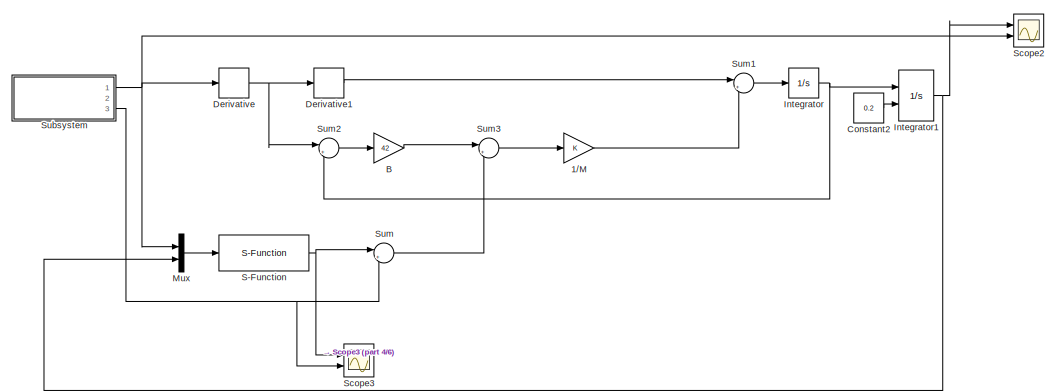
[diagram: root canvas - part 1/6, top right region]
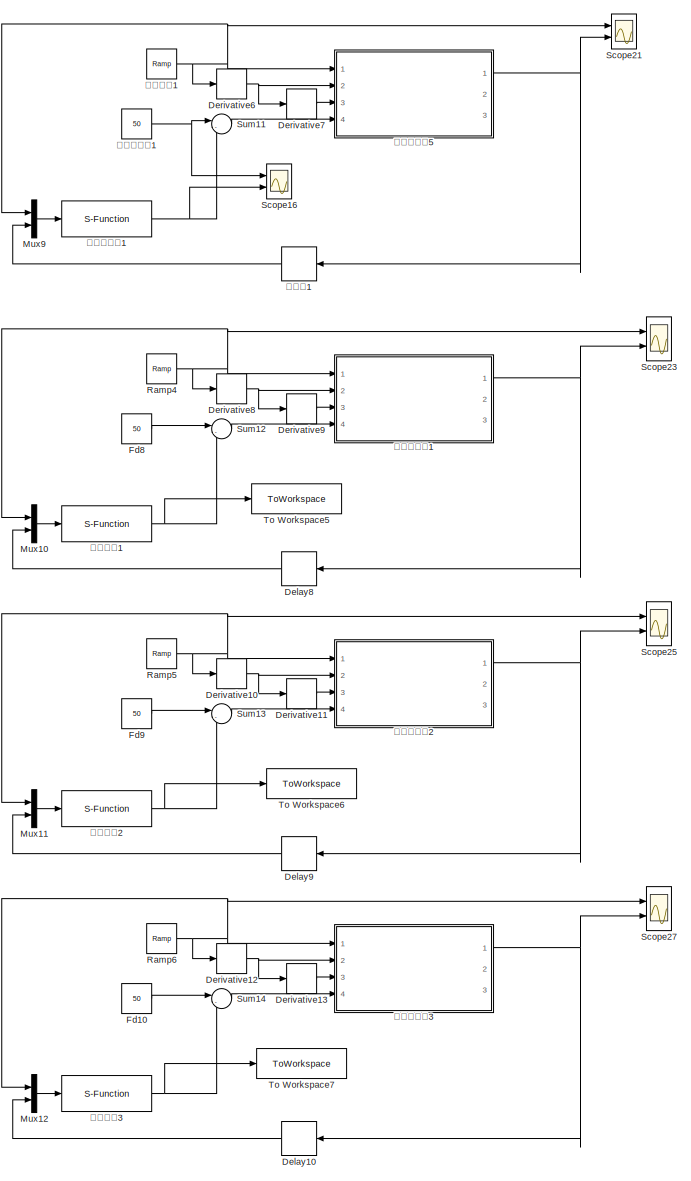
[diagram: root canvas - part 2/6, middle left region]
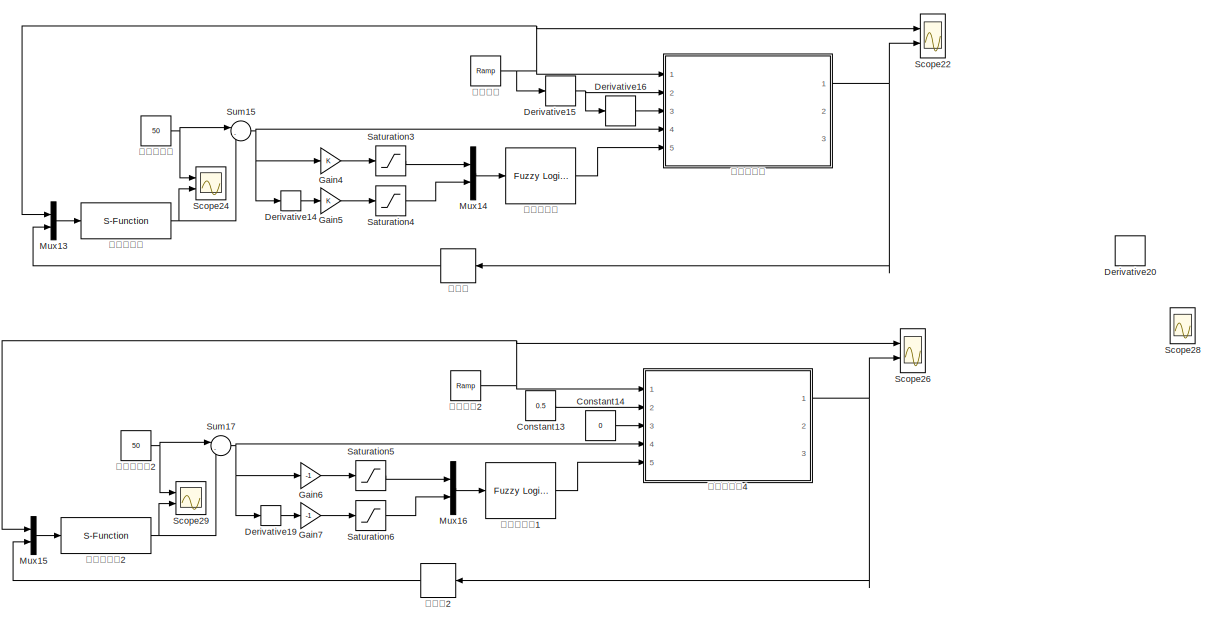
[diagram: root canvas - part 3/6, top center region]
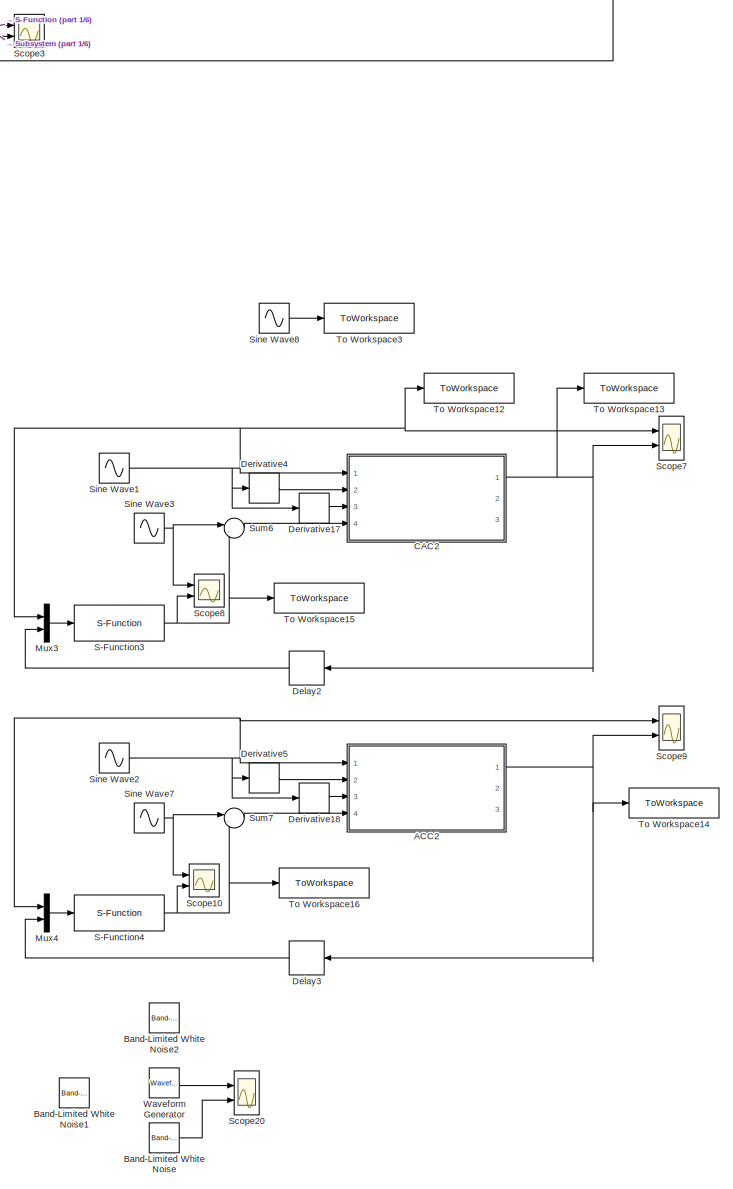
[diagram: root canvas - part 4/6, middle right region]
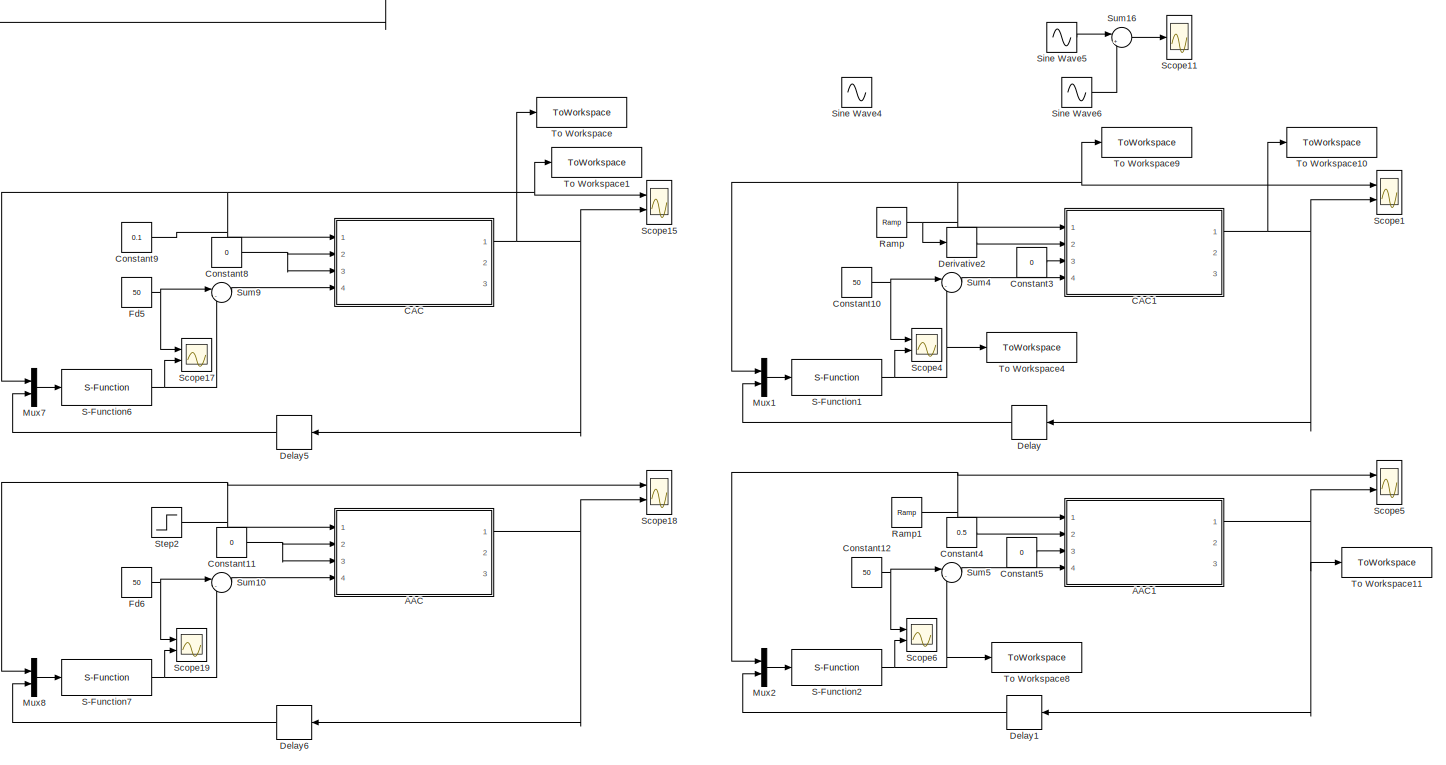
[diagram: root canvas - part 5/6, central region]
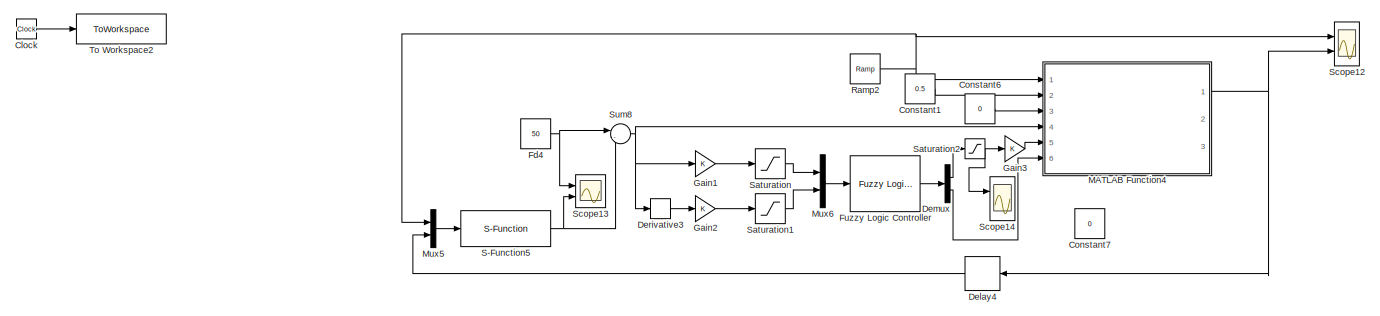
[diagram: root canvas - part 6/6, bottom center region]
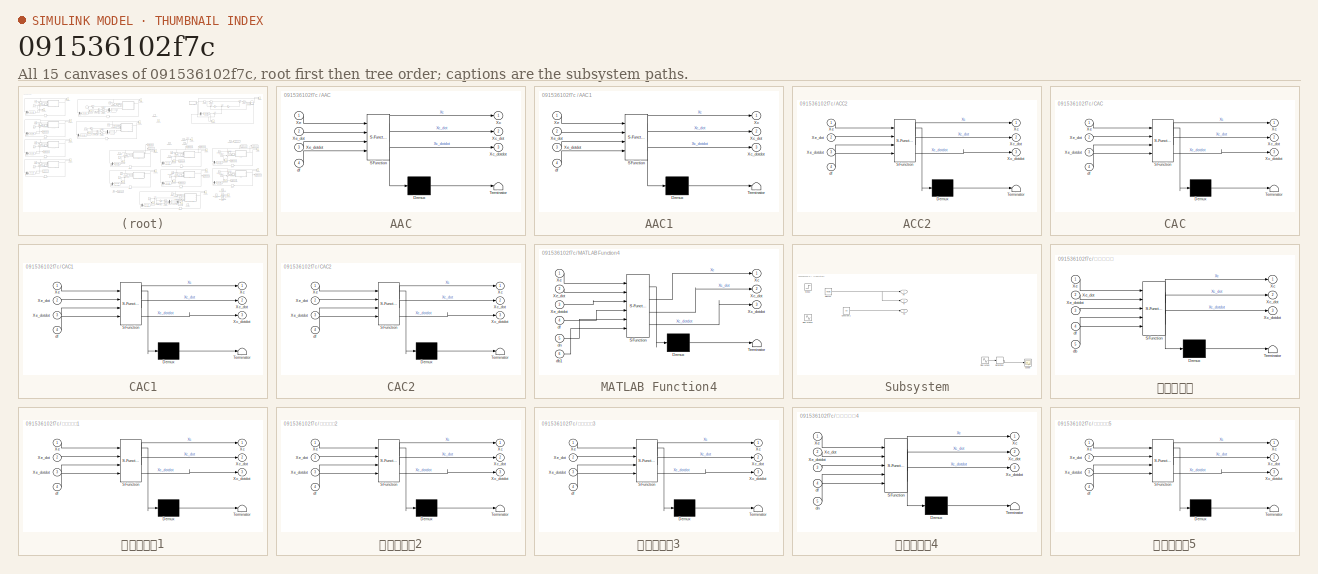
[diagram: thumbnail index - all 15 canvases of the model, root first then tree order]
MODEL slx_091536102f7c
KIND model
CONFIG AbsTol = auto
CONFIG EnableMultiTasking = off
CONFIG FixedStep = 0.00005
CONFIG MaxStep = auto
CONFIG MinStep = auto
CONFIG RelTol = 1e-3
CONFIG SampleTimeConstraint = Unconstrained
CONFIG Solver = FixedStepAuto
CONFIG SolverName = FixedStepAuto
CONFIG StartTime = 0.0
CONFIG StopTime = 2
BLOCK [Gain] 1//M
  Commented = on
BLOCK [SubSystem] AAC
  Commented = on
  ErrorFcn = Stateflow.Translate.translate
  PermitHierarchicalResolution = ExplicitOnly
  Ports = [4, 3]
  RequestExecContextInheritance = off
  SFBlockType = MATLAB Function
  TreatAsAtomicUnit = on
BLOCK [Demux] AAC/ Demux 
  Outputs = 1
  Ports = [1, 1]
BLOCK [S-Function] AAC/ SFunction 
  EnableBusSupport = on
  FunctionName = sf_sfun
  PortCounts = [4 4]
  Ports = [4, 4]
  SFcnIsStateOwnerBlock = off
  SFunctionDeploymentMode = off
  Tag = Stateflow S-Function 7
BLOCK [Terminator] AAC/ Terminator 
BLOCK [Outport] AAC/Xc
BLOCK [Outport] AAC/Xc_dot
  Port = 2
BLOCK [Outport] AAC/Xc_dotdot
  Port = 3
BLOCK [Inport] AAC/Xe
BLOCK [Inport] AAC/Xe_dot
  Port = 2
BLOCK [Inport] AAC/Xe_dotdot
  Port = 3
BLOCK [Inport] AAC/df
  Port = 4
BLOCK [SubSystem] AAC1
  Commented = on
  ErrorFcn = Stateflow.Translate.translate
  PermitHierarchicalResolution = ExplicitOnly
  Ports = [4, 3]
  RequestExecContextInheritance = off
  SFBlockType = MATLAB Function
  TreatAsAtomicUnit = on
BLOCK [Demux] AAC1/ Demux 
  Outputs = 1
  Ports = [1, 1]
BLOCK [S-Function] AAC1/ SFunction 
  EnableBusSupport = on
  FunctionName = sf_sfun
  PortCounts = [4 4]
  Ports = [4, 4]
  SFcnIsStateOwnerBlock = off
  SFunctionDeploymentMode = off
  Tag = Stateflow S-Function 1
BLOCK [Terminator] AAC1/ Terminator 
BLOCK [Outport] AAC1/Xc
BLOCK [Outport] AAC1/Xc_dot
  Port = 2
BLOCK [Outport] AAC1/Xc_dotdot
  Port = 3
BLOCK [Inport] AAC1/Xe
BLOCK [Inport] AAC1/Xe_dot
  Port = 2
BLOCK [Inport] AAC1/Xe_dotdot
  Port = 3
BLOCK [Inport] AAC1/df
  Port = 4
BLOCK [SubSystem] ACC2
  ErrorFcn = Stateflow.Translate.translate
  PermitHierarchicalResolution = ExplicitOnly
  Ports = [4, 3]
  RequestExecContextInheritance = off
  SFBlockType = MATLAB Function
  TreatAsAtomicUnit = on
BLOCK [Demux] ACC2/ Demux 
  Outputs = 1
  Ports = [1, 1]
BLOCK [S-Function] ACC2/ SFunction 
  EnableBusSupport = on
  FunctionName = sf_sfun
  PortCounts = [4 4]
  Ports = [4, 4]
  SFcnIsStateOwnerBlock = off
  SFunctionDeploymentMode = off
  Tag = Stateflow S-Function 4
BLOCK [Terminator] ACC2/ Terminator 
BLOCK [Outport] ACC2/Xc
BLOCK [Outport] ACC2/Xc_dot
  Port = 2
BLOCK [Outport] ACC2/Xc_dotdot
  Port = 3
BLOCK [Inport] ACC2/Xe
BLOCK [Inport] ACC2/Xe_dot
  Port = 2
BLOCK [Inport] ACC2/Xe_dotdot
  Port = 3
BLOCK [Inport] ACC2/df
  Port = 4
BLOCK [Gain] B
  Commented = on
  Gain = 42
BLOCK [Reference] Band-Limited White Noise  REF=simulink/Sources/Band-Limited
White Noise
  Ports = [0, 1]
  SourceBlock = simulink/Sources/Band-Limited\nWhite Noise
  SourceProductBaseCode = SL
  SourceType = Band-Limited White Noise.
BLOCK [Reference] Band-Limited White Noise1  REF=simulink/Sources/Band-Limited
White Noise
  NameLocation = top
  Ports = [0, 1]
  SourceBlock = simulink/Sources/Band-Limited\nWhite Noise
  SourceProductBaseCode = SL
  SourceType = Band-Limited White Noise.
BLOCK [Reference] Band-Limited White Noise2  REF=simulink/Sources/Band-Limited
White Noise
  Commented = on
  Ports = [0, 1]
  SourceBlock = simulink/Sources/Band-Limited\nWhite Noise
  SourceProductBaseCode = SL
  SourceType = Band-Limited White Noise.
BLOCK [SubSystem] CAC
  Commented = on
  ErrorFcn = Stateflow.Translate.translate
  PermitHierarchicalResolution = ExplicitOnly
  Ports = [4, 3]
  RequestExecContextInheritance = off
  SFBlockType = MATLAB Function
  TreatAsAtomicUnit = on
BLOCK [Demux] CAC/ Demux 
  Outputs = 1
  Ports = [1, 1]
BLOCK [S-Function] CAC/ SFunction 
  EnableBusSupport = on
  FunctionName = sf_sfun
  PortCounts = [4 4]
  Ports = [4, 4]
  SFcnIsStateOwnerBlock = off
  SFunctionDeploymentMode = off
  Tag = Stateflow S-Function 6
BLOCK [Terminator] CAC/ Terminator 
BLOCK [Outport] CAC/Xc
BLOCK [Outport] CAC/Xc_dot
  Port = 2
BLOCK [Outport] CAC/Xc_dotdot
  Port = 3
BLOCK [Inport] CAC/Xe
BLOCK [Inport] CAC/Xe_dot
  Port = 2
BLOCK [Inport] CAC/Xe_dotdot
  Port = 3
BLOCK [Inport] CAC/df
  Port = 4
BLOCK [SubSystem] CAC1
  Commented = on
  ErrorFcn = Stateflow.Translate.translate
  PermitHierarchicalResolution = ExplicitOnly
  Ports = [4, 3]
  RequestExecContextInheritance = off
  SFBlockType = MATLAB Function
  TreatAsAtomicUnit = on
BLOCK [Demux] CAC1/ Demux 
  Outputs = 1
  Ports = [1, 1]
BLOCK [S-Function] CAC1/ SFunction 
  EnableBusSupport = on
  FunctionName = sf_sfun
  PortCounts = [4 4]
  Ports = [4, 4]
  SFcnIsStateOwnerBlock = off
  SFunctionDeploymentMode = off
  Tag = Stateflow S-Function 2
BLOCK [Terminator] CAC1/ Terminator 
BLOCK [Outport] CAC1/Xc
BLOCK [Outport] CAC1/Xc_dot
  Port = 2
BLOCK [Outport] CAC1/Xc_dotdot
  Port = 3
BLOCK [Inport] CAC1/Xe
BLOCK [Inport] CAC1/Xe_dot
  Port = 2
BLOCK [Inport] CAC1/Xe_dotdot
  Port = 3
BLOCK [Inport] CAC1/df
  Port = 4
BLOCK [SubSystem] CAC2
  ErrorFcn = Stateflow.Translate.translate
  PermitHierarchicalResolution = ExplicitOnly
  Ports = [4, 3]
  RequestExecContextInheritance = off
  SFBlockType = MATLAB Function
  TreatAsAtomicUnit = on
BLOCK [Demux] CAC2/ Demux 
  Outputs = 1
  Ports = [1, 1]
BLOCK [S-Function] CAC2/ SFunction 
  EnableBusSupport = on
  FunctionName = sf_sfun
  PortCounts = [4 4]
  Ports = [4, 4]
  SFcnIsStateOwnerBlock = off
  SFunctionDeploymentMode = off
  Tag = Stateflow S-Function 3
BLOCK [Terminator] CAC2/ Terminator 
BLOCK [Outport] CAC2/Xc
BLOCK [Outport] CAC2/Xc_dot
  Port = 2
BLOCK [Outport] CAC2/Xc_dotdot
  Port = 3
BLOCK [Inport] CAC2/Xe
BLOCK [Inport] CAC2/Xe_dot
  Port = 2
BLOCK [Inport] CAC2/Xe_dotdot
  Port = 3
BLOCK [Inport] CAC2/df
  Port = 4
BLOCK [Clock] Clock
BLOCK [Constant] Constant1
  Commented = on
  Value = 0.5
BLOCK [Constant] Constant10
  Commented = on
  Value = 50
BLOCK [Constant] Constant11
  Commented = on
  Value = 0
BLOCK [Constant] Constant12
  Commented = on
  Value = 50
BLOCK [Constant] Constant13
  Commented = on
  Value = 0.5
BLOCK [Constant] Constant14
  Commented = on
  Value = 0
BLOCK [Constant] Constant2
  Commented = on
  Value = 0.2
BLOCK [Constant] Constant3
  Commented = on
  Value = 0
BLOCK [Constant] Constant4
  Commented = on
  Value = 0.5
BLOCK [Constant] Constant5
  Commented = on
  Value = 0
BLOCK [Constant] Constant6
  Commented = on
  Value = 0
BLOCK [Constant] Constant7
  Commented = on
  Value = 0
BLOCK [Constant] Constant8
  Commented = on
  Value = 0
BLOCK [Constant] Constant9
  Commented = on
  Value = 0.1
BLOCK [Delay] Delay
  Commented = on
  DelayLength = 1
  InitialCondition = -0.002
  InputPortMap = u0
  NameLocation = top
  Ports = [1, 1]
BLOCK [Delay] Delay1
  Commented = on
  DelayLength = 1
  InitialCondition = -0.002
  InputPortMap = u0
  NameLocation = top
  Ports = [1, 1]
BLOCK [Delay] Delay10
  Commented = on
  DelayLength = 1
  InitialCondition = -0.002
  InputPortMap = u0
  NameLocation = top
  Ports = [1, 1]
BLOCK [Delay] Delay2
  DelayLength = 1
  InitialCondition = 0.098
  InputPortMap = u0
  NameLocation = top
  Ports = [1, 1]
BLOCK [Delay] Delay3
  DelayLength = 1
  InitialCondition = 0.098
  InputPortMap = u0
  NameLocation = top
  Ports = [1, 1]
BLOCK [Delay] Delay4
  Commented = on
  DelayLength = 1
  InitialCondition = -0.002
  InputPortMap = u0
  NameLocation = top
  Ports = [1, 1]
BLOCK [Delay] Delay5
  Commented = on
  DelayLength = 1
  InitialCondition = 0.098
  InputPortMap = u0
  NameLocation = top
  Ports = [1, 1]
BLOCK [Delay] Delay6
  Commented = on
  DelayLength = 1
  InitialCondition = 0.098
  InputPortMap = u0
  NameLocation = top
  Ports = [1, 1]
BLOCK [Delay] Delay8
  Commented = on
  DelayLength = 1
  InitialCondition = -0.002
  InputPortMap = u0
  NameLocation = top
  Ports = [1, 1]
BLOCK [Delay] Delay9
  Commented = on
  DelayLength = 1
  InitialCondition = -0.002
  InputPortMap = u0
  NameLocation = top
  Ports = [1, 1]
BLOCK [Demux] Demux
  Commented = on
  Outputs = 2
  Ports = [1, 2]
BLOCK [Derivative] Derivative
  Commented = on
BLOCK [Derivative] Derivative1
  Commented = on
BLOCK [Derivative] Derivative10
  Commented = on
BLOCK [Derivative] Derivative11
  Commented = on
BLOCK [Derivative] Derivative12
  Commented = on
BLOCK [Derivative] Derivative13
  Commented = on
BLOCK [Derivative] Derivative14
  Commented = on
BLOCK [Derivative] Derivative15
  Commented = on
BLOCK [Derivative] Derivative16
  Commented = on
BLOCK [Derivative] Derivative17
BLOCK [Derivative] Derivative18
BLOCK [Derivative] Derivative19
  Commented = on
BLOCK [Derivative] Derivative2
  Commented = on
BLOCK [Derivative] Derivative20
BLOCK [Derivative] Derivative3
  Commented = on
BLOCK [Derivative] Derivative4
BLOCK [Derivative] Derivative5
BLOCK [Derivative] Derivative6
  Commented = on
BLOCK [Derivative] Derivative7
  Commented = on
BLOCK [Derivative] Derivative8
  Commented = on
BLOCK [Derivative] Derivative9
  Commented = on
BLOCK [Constant] Fd10
  Commented = on
  Value = 50
BLOCK [Constant] Fd4
  Commented = on
  Value = 50
BLOCK [Constant] Fd5
  Commented = on
  Value = 50
BLOCK [Constant] Fd6
  Commented = on
  Value = 50
BLOCK [Constant] Fd8
  Commented = on
  Value = 50
BLOCK [Constant] Fd9
  Commented = on
  Value = 50
BLOCK [Reference] Fuzzy Logic Controller  REF=fuzblock/Fuzzy Logic   (lib defined in mdl_858b3b3e7478)
Controller
  Commented = on
  Ports = [1, 1]
  SourceBlock = fuzblock/Fuzzy Logic \nController
  SourceProductBaseCode = FL
  SourceType = Fuzzy Inference System
BLOCK [Gain] Gain1
  Commented = on
BLOCK [Gain] Gain2
  Commented = on
BLOCK [Gain] Gain3
  Commented = on
BLOCK [Gain] Gain4
  Commented = on
BLOCK [Gain] Gain5
  Commented = on
BLOCK [Gain] Gain6
  Commented = on
  Gain = -1
BLOCK [Gain] Gain7
  Commented = on
  Gain = -1
BLOCK [Integrator] Integrator
  Commented = on
  Ports = [1, 1]
BLOCK [Integrator] Integrator1
  Commented = on
  InitialConditionSource = external
  Ports = [2, 1]
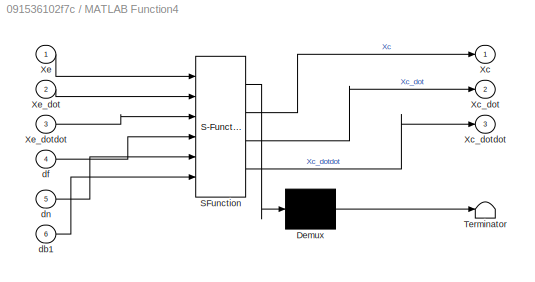
BLOCK [SubSystem] MATLAB Function4
  Commented = on
  ErrorFcn = Stateflow.Translate.translate
  PermitHierarchicalResolution = ExplicitOnly
  Ports = [6, 3]
  RequestExecContextInheritance = off
  SFBlockType = MATLAB Function
  TreatAsAtomicUnit = on
BLOCK [Demux] MATLAB Function4/ Demux 
  Outputs = 1
  Ports = [1, 1]
BLOCK [S-Function] MATLAB Function4/ SFunction 
  EnableBusSupport = on
  FunctionName = sf_sfun
  PortCounts = [6 4]
  Ports = [6, 4]
  SFcnIsStateOwnerBlock = off
  SFunctionDeploymentMode = off
  Tag = Stateflow S-Function 5
BLOCK [Terminator] MATLAB Function4/ Terminator 
BLOCK [Outport] MATLAB Function4/Xc
BLOCK [Outport] MATLAB Function4/Xc_dot
  Port = 2
BLOCK [Outport] MATLAB Function4/Xc_dotdot
  Port = 3
BLOCK [Inport] MATLAB Function4/Xe
BLOCK [Inport] MATLAB Function4/Xe_dot
  Port = 2
BLOCK [Inport] MATLAB Function4/Xe_dotdot
  Port = 3
BLOCK [Inport] MATLAB Function4/db1
  Port = 6
BLOCK [Inport] MATLAB Function4/df
  Port = 4
BLOCK [Inport] MATLAB Function4/dn
  Port = 5
BLOCK [Mux] Mux
  Commented = on
  DisplayOption = bar
  Inputs = 2
  Ports = [2, 1]
BLOCK [Mux] Mux1
  Commented = on
  DisplayOption = bar
  Inputs = 2
  Ports = [2, 1]
BLOCK [Mux] Mux10
  Commented = on
  DisplayOption = bar
  Inputs = 2
  Ports = [2, 1]
BLOCK [Mux] Mux11
  Commented = on
  DisplayOption = bar
  Inputs = 2
  Ports = [2, 1]
BLOCK [Mux] Mux12
  Commented = on
  DisplayOption = bar
  Inputs = 2
  Ports = [2, 1]
BLOCK [Mux] Mux13
  Commented = on
  DisplayOption = bar
  Inputs = 2
  Ports = [2, 1]
BLOCK [Mux] Mux14
  Commented = on
  DisplayOption = bar
  Inputs = 2
  Ports = [2, 1]
BLOCK [Mux] Mux15
  Commented = on
  DisplayOption = bar
  Inputs = 2
  Ports = [2, 1]
BLOCK [Mux] Mux16
  Commented = on
  DisplayOption = bar
  Inputs = 2
  Ports = [2, 1]
BLOCK [Mux] Mux2
  Commented = on
  DisplayOption = bar
  Inputs = 2
  Ports = [2, 1]
BLOCK [Mux] Mux3
  DisplayOption = bar
  Inputs = 2
  Ports = [2, 1]
BLOCK [Mux] Mux4
  DisplayOption = bar
  Inputs = 2
  Ports = [2, 1]
BLOCK [Mux] Mux5
  Commented = on
  DisplayOption = bar
  Inputs = 2
  Ports = [2, 1]
BLOCK [Mux] Mux6
  Commented = on
  DisplayOption = bar
  Inputs = 2
  Ports = [2, 1]
BLOCK [Mux] Mux7
  Commented = on
  DisplayOption = bar
  Inputs = 2
  Ports = [2, 1]
BLOCK [Mux] Mux8
  Commented = on
  DisplayOption = bar
  Inputs = 2
  Ports = [2, 1]
BLOCK [Mux] Mux9
  Commented = on
  DisplayOption = bar
  Inputs = 2
  Ports = [2, 1]
BLOCK [Reference] Ramp  REF=simulink/Sources/Ramp
  Commented = on
  Ports = [0, 1]
  SourceBlock = simulink/Sources/Ramp
  SourceProductBaseCode = SL
  SourceType = Ramp
BLOCK [Reference] Ramp1  REF=simulink/Sources/Ramp
  Commented = on
  Ports = [0, 1]
  SourceBlock = simulink/Sources/Ramp
  SourceProductBaseCode = SL
  SourceType = Ramp
BLOCK [Reference] Ramp2  REF=simulink/Sources/Ramp
  Commented = on
  Ports = [0, 1]
  SourceBlock = simulink/Sources/Ramp
  SourceProductBaseCode = SL
  SourceType = Ramp
BLOCK [Reference] Ramp4  REF=simulink/Sources/Ramp
  Commented = on
  Ports = [0, 1]
  SourceBlock = simulink/Sources/Ramp
  SourceProductBaseCode = SL
  SourceType = Ramp
BLOCK [Reference] Ramp5  REF=simulink/Sources/Ramp
  Commented = on
  Ports = [0, 1]
  SourceBlock = simulink/Sources/Ramp
  SourceProductBaseCode = SL
  SourceType = Ramp
BLOCK [Reference] Ramp6  REF=simulink/Sources/Ramp
  Commented = on
  Ports = [0, 1]
  SourceBlock = simulink/Sources/Ramp
  SourceProductBaseCode = SL
  SourceType = Ramp
BLOCK [S-Function] S-Function
  Commented = on
  EnableBusSupport = off
  FunctionName = contact_force
  Ports = [1, 1]
  SFcnIsStateOwnerBlock = off
  SFunctionDeploymentMode = off
BLOCK [S-Function] S-Function1
  Commented = on
  EnableBusSupport = off
  FunctionName = contact_force
  Ports = [1, 1]
  SFcnIsStateOwnerBlock = off
  SFunctionDeploymentMode = off
BLOCK [S-Function] S-Function2
  Commented = on
  EnableBusSupport = off
  FunctionName = contact_force
  Ports = [1, 1]
  SFcnIsStateOwnerBlock = off
  SFunctionDeploymentMode = off
BLOCK [S-Function] S-Function3
  EnableBusSupport = off
  FunctionName = contact_force
  Ports = [1, 1]
  SFcnIsStateOwnerBlock = off
  SFunctionDeploymentMode = off
BLOCK [S-Function] S-Function4
  EnableBusSupport = off
  FunctionName = contact_force
  Ports = [1, 1]
  SFcnIsStateOwnerBlock = off
  SFunctionDeploymentMode = off
BLOCK [S-Function] S-Function5
  Commented = on
  EnableBusSupport = off
  FunctionName = contact_force
  Ports = [1, 1]
  SFcnIsStateOwnerBlock = off
  SFunctionDeploymentMode = off
BLOCK [S-Function] S-Function6
  Commented = on
  EnableBusSupport = off
  FunctionName = contact_force
  Ports = [1, 1]
  SFcnIsStateOwnerBlock = off
  SFunctionDeploymentMode = off
BLOCK [S-Function] S-Function7
  Commented = on
  EnableBusSupport = off
  FunctionName = contact_force
  Ports = [1, 1]
  SFcnIsStateOwnerBlock = off
  SFunctionDeploymentMode = off
BLOCK [Saturate] Saturation
  Commented = on
  LowerLimit = -8
  UpperLimit = 8
BLOCK [Saturate] Saturation1
  Commented = on
  LowerLimit = -8
  UpperLimit = 8
BLOCK [Saturate] Saturation2
  Commented = on
  LowerLimit = -10000
  UpperLimit = 10000
BLOCK [Saturate] Saturation3
  Commented = on
  LowerLimit = -8
  UpperLimit = 8
BLOCK [Saturate] Saturation4
  Commented = on
  LowerLimit = -8
  UpperLimit = 8
BLOCK [Saturate] Saturation5
  Commented = on
  LowerLimit = -6
  UpperLimit = 6
BLOCK [Saturate] Saturation6
  Commented = on
  LowerLimit = -6
  UpperLimit = 6
BLOCK [Scope] Scope1
  Commented = on
  Floating = off
  NumInputPorts = 2
  Ports = [2]
  ScopeSpecificationString = Simulink.scopes.TimeScopeBlockCfg('CurrentConfiguration', extmgr.ConfigurationSet(extmgr.Configuration('Core','General UI',true),extmgr.Configuration('Core','Source UI',true),extmgr.Configuration('Sources','WiredSimulink',true,'DataLoggingVariableName','ScopeData1'),extmgr.Configuration('Visuals','Time Domain',true,'SerializedDisplays',{struct('MinYLimReal','-0.03421','MaxYLimReal','0.28719','YLab...<+1405ch>
BLOCK [Scope] Scope10
  Floating = off
  NumInputPorts = 2
  Ports = [2]
  ScopeSpecificationString = Simulink.scopes.TimeScopeBlockCfg('CurrentConfiguration', extmgr.ConfigurationSet(extmgr.Configuration('Core','General UI',true),extmgr.Configuration('Core','Source UI',true),extmgr.Configuration('Sources','WiredSimulink',true,'DataLoggingVariableName','ScopeData1'),extmgr.Configuration('Visuals','Time Domain',true,'SerializedDisplays',{struct('MinYLimReal','-14.36772','MaxYLimReal','18.56492','YL...<+1493ch>
BLOCK [Scope] Scope11
  Floating = off
  NumInputPorts = 1
  Ports = [1]
  ScopeSpecificationString = Simulink.scopes.TimeScopeBlockCfg('CurrentConfiguration', extmgr.ConfigurationSet(extmgr.Configuration('Core','General UI',true),extmgr.Configuration('Core','Source UI',true),extmgr.Configuration('Sources','WiredSimulink',true,'DataLoggingVariableName','ScopeData2'),extmgr.Configuration('Visuals','Time Domain',true,'SerializedDisplays',{struct('MinYLimReal','-0.0977','MaxYLimReal','0.09745','YLabe...<+1418ch>
BLOCK [Scope] Scope12
  Commented = on
  Floating = off
  NumInputPorts = 2
  Ports = [2]
  ScopeSpecificationString = Simulink.scopes.TimeScopeBlockCfg('CurrentConfiguration', extmgr.ConfigurationSet(extmgr.Configuration('Core','General UI',true),extmgr.Configuration('Core','Source UI',true),extmgr.Configuration('Sources','WiredSimulink',true,'DataLoggingVariableName','ScopeData1'),extmgr.Configuration('Visuals','Time Domain',true,'SerializedDisplays',{struct('MinYLimReal','-0.70776','MaxYLimReal','5.63364','YLab...<+1438ch>
BLOCK [Scope] Scope13
  Commented = on
  Floating = off
  NumInputPorts = 2
  Ports = [2]
  ScopeSpecificationString = Simulink.scopes.TimeScopeBlockCfg('CurrentConfiguration', extmgr.ConfigurationSet(extmgr.Configuration('Core','General UI',true),extmgr.Configuration('Core','Source UI',true),extmgr.Configuration('Sources','WiredSimulink',true,'DataLoggingVariableName','ScopeData2'),extmgr.Configuration('Visuals','Time Domain',true,'SerializedDisplays',{struct('MinYLimReal','49.77845','MaxYLimReal','50.19047','YLa...<+1459ch>
BLOCK [Scope] Scope14
  Commented = on
  Floating = off
  NumInputPorts = 2
  Ports = [2]
  ScopeSpecificationString = Simulink.scopes.TimeScopeBlockCfg('CurrentConfiguration', extmgr.ConfigurationSet(extmgr.Configuration('Core','General UI',true),extmgr.Configuration('Core','Source UI',true),extmgr.Configuration('Sources','WiredSimulink',true,'DataLoggingVariableName','ScopeData3'),extmgr.Configuration('Visuals','Time Domain',true,'SerializedDisplays',{struct('MinYLimReal','0.45359','MaxYLimReal','1.27458','YLabe...<+1502ch>
BLOCK [Scope] Scope15
  Commented = on
  Floating = off
  NumInputPorts = 2
  Ports = [2]
  ScopeSpecificationString = Simulink.scopes.TimeScopeBlockCfg('CurrentConfiguration', extmgr.ConfigurationSet(extmgr.Configuration('Core','General UI',true),extmgr.Configuration('Core','Source UI',true),extmgr.Configuration('Sources','WiredSimulink',true,'DataLoggingVariableName','ScopeData1'),extmgr.Configuration('Visuals','Time Domain',true,'SerializedDisplays',{struct('MinYLimReal','0.08836','MaxYLimReal','0.10129','YLabe...<+1407ch>
BLOCK [Scope] Scope16
  Commented = on
  Floating = off
  NumInputPorts = 2
  Ports = [2]
  ScopeSpecificationString = Simulink.scopes.TimeScopeBlockCfg('CurrentConfiguration', extmgr.ConfigurationSet(extmgr.Configuration('Core','General UI',true),extmgr.Configuration('Core','Source UI',true),extmgr.Configuration('Sources','WiredSimulink',true,'DataLoggingVariableName','ScopeData5'),extmgr.Configuration('Visuals','Time Domain',true,'SerializedDisplays',{struct('MinYLimReal','3.48992','MaxYLimReal','68.59073','YLab...<+1435ch>
BLOCK [Scope] Scope17
  Commented = on
  Floating = off
  NumInputPorts = 2
  Ports = [2]
  ScopeSpecificationString = Simulink.scopes.TimeScopeBlockCfg('CurrentConfiguration', extmgr.ConfigurationSet(extmgr.Configuration('Core','General UI',true),extmgr.Configuration('Core','Source UI',true),extmgr.Configuration('Sources','WiredSimulink',true,'DataLoggingVariableName','ScopeData3'),extmgr.Configuration('Visuals','Time Domain',true,'SerializedDisplays',{struct('MinYLimReal','4.78222','MaxYLimReal','56.95998','YLab...<+1456ch>
BLOCK [Scope] Scope18
  Commented = on
  Floating = off
  NumInputPorts = 2
  Ports = [2]
  ScopeSpecificationString = Simulink.scopes.TimeScopeBlockCfg('CurrentConfiguration', extmgr.ConfigurationSet(extmgr.Configuration('Core','General UI',true),extmgr.Configuration('Core','Source UI',true),extmgr.Configuration('Sources','WiredSimulink',true,'DataLoggingVariableName','ScopeData4'),extmgr.Configuration('Visuals','Time Domain',true,'SerializedDisplays',{struct('MinYLimReal','0.08543','MaxYLimReal','0.10162','YLabe...<+1437ch>
BLOCK [Scope] Scope19
  Commented = on
  Floating = off
  NumInputPorts = 2
  Ports = [2]
  ScopeSpecificationString = Simulink.scopes.TimeScopeBlockCfg('CurrentConfiguration', extmgr.ConfigurationSet(extmgr.Configuration('Core','General UI',true),extmgr.Configuration('Core','Source UI',true),extmgr.Configuration('Sources','WiredSimulink',true,'DataLoggingVariableName','ScopeData5'),extmgr.Configuration('Visuals','Time Domain',true,'SerializedDisplays',{struct('MinYLimReal','1.08489','MaxYLimReal','65.23596','YLab...<+1453ch>
BLOCK [Scope] Scope2
  Commented = on
  Floating = off
  NumInputPorts = 2
  Ports = [2]
  ScopeSpecificationString = Simulink.scopes.TimeScopeBlockCfg('CurrentConfiguration', extmgr.ConfigurationSet(extmgr.Configuration('Core','General UI',true),extmgr.Configuration('Core','Source UI',true),extmgr.Configuration('Sources','WiredSimulink',true),extmgr.Configuration('Visuals','Time Domain',true,'SerializedDisplays',{struct('MinYLimReal','-0.73903','MaxYLimReal','5.63211','YLabelReal','','MinYLimMag','0.00000','MaxY...<+1397ch>
BLOCK [Scope] Scope20
  Floating = off
  NumInputPorts = 2
  Ports = [2]
  ScopeSpecificationString = Simulink.scopes.TimeScopeBlockCfg('CurrentConfiguration', extmgr.ConfigurationSet(extmgr.Configuration('Core','General UI',true),extmgr.Configuration('Core','Source UI',true),extmgr.Configuration('Sources','WiredSimulink',true,'DataLoggingVariableName','ScopeData1'),extmgr.Configuration('Visuals','Time Domain',true,'SerializedDisplays',{struct('MinYLimReal','-0.57066','MaxYLimReal','0.59378','YLab...<+1461ch>
BLOCK [Scope] Scope21
  Commented = on
  Floating = off
  NumInputPorts = 2
  Ports = [2]
  ScopeSpecificationString = Simulink.scopes.TimeScopeBlockCfg('CurrentConfiguration', extmgr.ConfigurationSet(extmgr.Configuration('Core','General UI',true),extmgr.Configuration('Core','Source UI',true),extmgr.Configuration('Sources','WiredSimulink',true,'DataLoggingVariableName','ScopeData1'),extmgr.Configuration('Visuals','Time Domain',true,'SerializedDisplays',{struct('MinYLimReal','-0.04164','MaxYLimReal','0.35454','YLab...<+1403ch>
BLOCK [Scope] Scope22
  Commented = on
  Floating = off
  NumInputPorts = 2
  Ports = [2]
  ScopeSpecificationString = Simulink.scopes.TimeScopeBlockCfg('CurrentConfiguration', extmgr.ConfigurationSet(extmgr.Configuration('Core','General UI',true),extmgr.Configuration('Core','Source UI',true),extmgr.Configuration('Sources','WiredSimulink',true,'DataLoggingVariableName','ScopeData1'),extmgr.Configuration('Visuals','Time Domain',true,'SerializedDisplays',{struct('MinYLimReal','0.13781','MaxYLimReal','0.3957','YLabel...<+1431ch>
BLOCK [Scope] Scope23
  Commented = on
  Floating = off
  NumInputPorts = 2
  Ports = [2]
  ScopeSpecificationString = Simulink.scopes.TimeScopeBlockCfg('CurrentConfiguration', extmgr.ConfigurationSet(extmgr.Configuration('Core','General UI',true),extmgr.Configuration('Core','Source UI',true),extmgr.Configuration('Sources','WiredSimulink',true,'DataLoggingVariableName','ScopeData3'),extmgr.Configuration('Visuals','Time Domain',true,'SerializedDisplays',{struct('MinYLimReal','-0.06468','MaxYLimReal','0.56185','YLab...<+1407ch>
BLOCK [Scope] Scope24
  Commented = on
  Floating = off
  NumInputPorts = 2
  Ports = [2]
  ScopeSpecificationString = Simulink.scopes.TimeScopeBlockCfg('CurrentConfiguration', extmgr.ConfigurationSet(extmgr.Configuration('Core','General UI',true),extmgr.Configuration('Core','Source UI',true),extmgr.Configuration('Sources','WiredSimulink',true,'DataLoggingVariableName','ScopeData2'),extmgr.Configuration('Visuals','Time Domain',true,'SerializedDisplays',{struct('MinYLimReal','-27.85987','MaxYLimReal','127.51475','Y...<+1446ch>
BLOCK [Scope] Scope25
  Commented = on
  Floating = off
  NumInputPorts = 2
  Ports = [2]
  ScopeSpecificationString = Simulink.scopes.TimeScopeBlockCfg('CurrentConfiguration', extmgr.ConfigurationSet(extmgr.Configuration('Core','General UI',true),extmgr.Configuration('Core','Source UI',true),extmgr.Configuration('Sources','WiredSimulink',true,'DataLoggingVariableName','ScopeData5'),extmgr.Configuration('Visuals','Time Domain',true,'SerializedDisplays',{struct('MinYLimReal','-0.06468','MaxYLimReal','0.56185','YLab...<+1407ch>
BLOCK [Scope] Scope26
  Commented = on
  Floating = off
  NumInputPorts = 2
  Ports = [2]
  ScopeSpecificationString = Simulink.scopes.TimeScopeBlockCfg('CurrentConfiguration', extmgr.ConfigurationSet(extmgr.Configuration('Core','General UI',true),extmgr.Configuration('Core','Source UI',true),extmgr.Configuration('Sources','WiredSimulink',true,'DataLoggingVariableName','ScopeData1'),extmgr.Configuration('Visuals','Time Domain',true,'SerializedDisplays',{struct('MinYLimReal','-1135374855807.70898','MaxYLimReal','12...<+1519ch>
BLOCK [Scope] Scope27
  Commented = on
  Floating = off
  NumInputPorts = 2
  Ports = [2]
  ScopeSpecificationString = Simulink.scopes.TimeScopeBlockCfg('CurrentConfiguration', extmgr.ConfigurationSet(extmgr.Configuration('Core','General UI',true),extmgr.Configuration('Core','Source UI',true),extmgr.Configuration('Sources','WiredSimulink',true,'DataLoggingVariableName','ScopeData7'),extmgr.Configuration('Visuals','Time Domain',true,'SerializedDisplays',{struct('MinYLimReal','-0.06468','MaxYLimReal','0.56185','YLab...<+1407ch>
BLOCK [Scope] Scope28
  Commented = on
  Floating = off
  NumInputPorts = 1
  Ports = [1]
  ScopeSpecificationString = Simulink.scopes.TimeScopeBlockCfg('CurrentConfiguration', extmgr.ConfigurationSet(extmgr.Configuration('Core','General UI',true),extmgr.Configuration('Core','Source UI',true),extmgr.Configuration('Sources','WiredSimulink',true,'DataLoggingVariableName','ScopeData1'),extmgr.Configuration('Visuals','Time Domain',true,'SerializedDisplays',{struct('MinYLimReal','-8.90147','MaxYLimReal','74.86293','YLa...<+1438ch>
BLOCK [Scope] Scope29
  Commented = on
  Floating = off
  NumInputPorts = 2
  Ports = [2]
  ScopeSpecificationString = Simulink.scopes.TimeScopeBlockCfg('CurrentConfiguration', extmgr.ConfigurationSet(extmgr.Configuration('Core','General UI',true),extmgr.Configuration('Core','Source UI',true),extmgr.Configuration('Sources','WiredSimulink',true,'DataLoggingVariableName','ScopeData2'),extmgr.Configuration('Visuals','Time Domain',true,'SerializedDisplays',{struct('MinYLimReal','2.59713','MaxYLimReal','57.67458','YLab...<+1451ch>
BLOCK [Scope] Scope3
  Commented = on
  Floating = off
  NumInputPorts = 2
  Ports = [2]
  ScopeSpecificationString = Simulink.scopes.TimeScopeBlockCfg('CurrentConfiguration', extmgr.ConfigurationSet(extmgr.Configuration('Core','General UI',true),extmgr.Configuration('Core','Source UI',true),extmgr.Configuration('Sources','WiredSimulink',true,'DataLoggingVariableName','ScopeData2'),extmgr.Configuration('Visuals','Time Domain',true,'SerializedDisplays',{struct('MinYLimReal','47.18889','MaxYLimReal','52.46789','YLa...<+1439ch>
BLOCK [Scope] Scope4
  Commented = on
  Floating = off
  NumInputPorts = 2
  Ports = [2]
  ScopeSpecificationString = Simulink.scopes.TimeScopeBlockCfg('CurrentConfiguration', extmgr.ConfigurationSet(extmgr.Configuration('Core','General UI',true),extmgr.Configuration('Core','Source UI',true),extmgr.Configuration('Sources','WiredSimulink',true,'DataLoggingVariableName','ScopeData4'),extmgr.Configuration('Visuals','Time Domain',true,'SerializedDisplays',{struct('MinYLimReal','1.74371','MaxYLimReal','34.24326','YLab...<+1514ch>
BLOCK [Scope] Scope5
  Commented = on
  Floating = off
  NumInputPorts = 2
  Ports = [2]
  ScopeSpecificationString = Simulink.scopes.TimeScopeBlockCfg('CurrentConfiguration', extmgr.ConfigurationSet(extmgr.Configuration('Core','General UI',true),extmgr.Configuration('Core','Source UI',true),extmgr.Configuration('Sources','WiredSimulink',true,'DataLoggingVariableName','ScopeData1'),extmgr.Configuration('Visuals','Time Domain',true,'SerializedDisplays',{struct('MinYLimReal','-0.70776','MaxYLimReal','5.63364','YLab...<+1427ch>
BLOCK [Scope] Scope6
  Commented = on
  Floating = off
  NumInputPorts = 2
  Ports = [2]
  ScopeSpecificationString = Simulink.scopes.TimeScopeBlockCfg('CurrentConfiguration', extmgr.ConfigurationSet(extmgr.Configuration('Core','General UI',true),extmgr.Configuration('Core','Source UI',true),extmgr.Configuration('Sources','WiredSimulink',true,'DataLoggingVariableName','ScopeData2'),extmgr.Configuration('Visuals','Time Domain',true,'SerializedDisplays',{struct('MinYLimReal','2.61528','MaxYLimReal','59.53163','YLab...<+1463ch>
BLOCK [Scope] Scope7
  Floating = off
  NumInputPorts = 2
  Ports = [2]
  ScopeSpecificationString = Simulink.scopes.TimeScopeBlockCfg('CurrentConfiguration', extmgr.ConfigurationSet(extmgr.Configuration('Core','General UI',true),extmgr.Configuration('Core','Source UI',true),extmgr.Configuration('Sources','WiredSimulink',true,'DataLoggingVariableName','ScopeData2'),extmgr.Configuration('Visuals','Time Domain',true,'SerializedDisplays',{struct('MinYLimReal','-0.02635','MaxYLimReal','0.22515','YLab...<+1436ch>
BLOCK [Scope] Scope8
  Floating = off
  NumInputPorts = 2
  Ports = [2]
  ScopeSpecificationString = Simulink.scopes.TimeScopeBlockCfg('CurrentConfiguration', extmgr.ConfigurationSet(extmgr.Configuration('Core','General UI',true),extmgr.Configuration('Core','Source UI',true),extmgr.Configuration('Sources','WiredSimulink',true,'DataLoggingVariableName','ScopeData3'),extmgr.Configuration('Visuals','Time Domain',true,'SerializedDisplays',{struct('MinYLimReal','2.39248','MaxYLimReal','28.46766','YLab...<+1461ch>
BLOCK [Scope] Scope9
  Floating = off
  NumInputPorts = 2
  Ports = [2]
  ScopeSpecificationString = Simulink.scopes.TimeScopeBlockCfg('CurrentConfiguration', extmgr.ConfigurationSet(extmgr.Configuration('Core','General UI',true),extmgr.Configuration('Core','Source UI',true),extmgr.Configuration('Sources','WiredSimulink',true,'DataLoggingVariableName','ScopeData4'),extmgr.Configuration('Visuals','Time Domain',true,'SerializedDisplays',{struct('MinYLimReal','-0.02606','MaxYLimReal','0.22512','YLab...<+1457ch>
BLOCK [Sin] Sine Wave1
  Amplitude = 0.1
  Bias = 0.1
  Frequency = pi
  Phase = 0.01
  Ports = [0, 1]
  SampleTime = 0
BLOCK [Sin] Sine Wave2
  Amplitude = 0.1
  Bias = 0.1
  Frequency = pi
  Phase = 0.01
  Ports = [0, 1]
  SampleTime = 0
BLOCK [Sin] Sine Wave3
  Amplitude = 5
  Bias = 10
  Frequency = pi
  Phase = 0.01
  Ports = [0, 1]
  SampleTime = 0
BLOCK [Sin] Sine Wave4
  Amplitude = 5
  Bias = 10
  Commented = on
  Frequency = 2*pi
  Phase = 0.01
  Ports = [0, 1]
  SampleTime = 0
BLOCK [Sin] Sine Wave5
  Amplitude = 0.05
  Bias = 0.1
  Frequency = 2*pi
  Phase = 0.01
  Ports = [0, 1]
  SampleTime = 0
BLOCK [Sin] Sine Wave6
  Amplitude = 0.03
  Bias = -0.1
  Frequency = 5*pi
  Phase = pi
  Ports = [0, 1]
  SampleTime = 0
BLOCK [Sin] Sine Wave7
  Amplitude = 5
  Bias = 10
  Frequency = pi
  Phase = 0.01
  Ports = [0, 1]
  SampleTime = 0
BLOCK [Sin] Sine Wave8
  Amplitude = 5
  Bias = 10
  Frequency = pi
  Phase = 0.01
  Ports = [0, 1]
  SampleTime = 0
BLOCK [Step] Step2
  After = 0.1
  Commented = on
  SampleTime = 0
  Time = 0
BLOCK [SubSystem] Subsystem
  Commented = on
  Ports = [0, 3]
  RequestExecContextInheritance = off
BLOCK [Constant] Subsystem/Constant1
  Value = 50
BLOCK [Derivative] Subsystem/Derivative
BLOCK [Outport] Subsystem/Fd
  Port = 3
BLOCK [Reference] Subsystem/Ramp1  REF=simulink/Sources/Ramp
  Ports = [0, 1]
  SourceBlock = simulink/Sources/Ramp
  SourceProductBaseCode = SL
  SourceType = Ramp
BLOCK [Scope] Subsystem/Scope
  Floating = off
  NumInputPorts = 1
  Ports = [1]
  ScopeSpecificationString = Simulink.scopes.TimeScopeBlockCfg('CurrentConfiguration', extmgr.ConfigurationSet(extmgr.Configuration('Core','General UI',true),extmgr.Configuration('Core','Source UI',true),extmgr.Configuration('Sources','WiredSimulink',true,'DataLoggingVariableName','ScopeData3'),extmgr.Configuration('Visuals','Time Domain',true,'SerializedDisplays',{struct('MinYLimReal','-0.31045','MaxYLimReal','1.12745','YLab...<+1388ch>
BLOCK [Sin] Subsystem/Sine Wave
  Ports = [0, 1]
  SampleTime = 0
BLOCK [Sin] Subsystem/Sine Wave1
  Bias = -1
  Phase = pi / 2
  Ports = [0, 1]
  SampleTime = 0
BLOCK [Step] Subsystem/Step2
  After = 0.1
  SampleTime = 0
  Time = 0
BLOCK [Outport] Subsystem/Xe
BLOCK [Outport] Subsystem/Xr
  Port = 2
BLOCK [Sum] Sum
  Commented = on
  Inputs = |+-
  Ports = [2, 1]
BLOCK [Sum] Sum1
  Commented = on
  Inputs = |++
  Ports = [2, 1]
BLOCK [Sum] Sum10
  Commented = on
  Inputs = |-+
  Ports = [2, 1]
BLOCK [Sum] Sum11
  Commented = on
  Inputs = |-+
  Ports = [2, 1]
BLOCK [Sum] Sum12
  Commented = on
  Inputs = |-+
  Ports = [2, 1]
BLOCK [Sum] Sum13
  Commented = on
  Inputs = |-+
  Ports = [2, 1]
BLOCK [Sum] Sum14
  Commented = on
  Inputs = |-+
  Ports = [2, 1]
BLOCK [Sum] Sum15
  Commented = on
  Inputs = |-+
  Ports = [2, 1]
BLOCK [Sum] Sum16
  Inputs = |++
  Ports = [2, 1]
BLOCK [Sum] Sum17
  Commented = on
  Inputs = |-+
  Ports = [2, 1]
BLOCK [Sum] Sum2
  Commented = on
  Inputs = |+-
  Ports = [2, 1]
BLOCK [Sum] Sum3
  Commented = on
  Inputs = |++
  Ports = [2, 1]
BLOCK [Sum] Sum4
  Commented = on
  Inputs = |-+
  Ports = [2, 1]
BLOCK [Sum] Sum5
  Commented = on
  Inputs = |-+
  Ports = [2, 1]
BLOCK [Sum] Sum6
  Inputs = |-+
  Ports = [2, 1]
BLOCK [Sum] Sum7
  Inputs = |-+
  Ports = [2, 1]
BLOCK [Sum] Sum8
  Commented = on
  Inputs = |-+
  Ports = [2, 1]
BLOCK [Sum] Sum9
  Commented = on
  Inputs = |-+
  Ports = [2, 1]
BLOCK [ToWorkspace] To Workspace
  Commented = on
  FixptAsFi = on
  MaxDataPoints = inf
  Ports = [1]
  SampleTime = -1
  SaveFormat = Timeseries
  VariableName = Xc_1
BLOCK [ToWorkspace] To Workspace1
  Commented = on
  FixptAsFi = on
  MaxDataPoints = inf
  Ports = [1]
  SampleTime = -1
  SaveFormat = Timeseries
  VariableName = Xe_1
BLOCK [ToWorkspace] To Workspace10
  Commented = on
  FixptAsFi = on
  MaxDataPoints = inf
  Ports = [1]
  SampleTime = -1
  SaveFormat = Timeseries
  VariableName = Xc1
BLOCK [ToWorkspace] To Workspace11
  Commented = on
  FixptAsFi = on
  MaxDataPoints = inf
  Ports = [1]
  SampleTime = -1
  SaveFormat = Timeseries
  VariableName = Xc2
BLOCK [ToWorkspace] To Workspace12
  FixptAsFi = on
  MaxDataPoints = inf
  Ports = [1]
  SampleTime = -1
  SaveFormat = Timeseries
  VariableName = Xe1
BLOCK [ToWorkspace] To Workspace13
  FixptAsFi = on
  MaxDataPoints = inf
  Ports = [1]
  SampleTime = -1
  SaveFormat = Timeseries
  VariableName = Xc3
BLOCK [ToWorkspace] To Workspace14
  FixptAsFi = on
  MaxDataPoints = inf
  Ports = [1]
  SampleTime = -1
  SaveFormat = Timeseries
  VariableName = Xc4
BLOCK [ToWorkspace] To Workspace15
  FixptAsFi = on
  MaxDataPoints = inf
  Ports = [1]
  SampleTime = -1
  SaveFormat = Timeseries
  VariableName = Fd3
BLOCK [ToWorkspace] To Workspace16
  FixptAsFi = on
  MaxDataPoints = inf
  Ports = [1]
  SampleTime = -1
  SaveFormat = Timeseries
  VariableName = Fd4
BLOCK [ToWorkspace] To Workspace2
  FixptAsFi = on
  MaxDataPoints = inf
  Ports = [1]
  SampleTime = -1
  SaveFormat = Timeseries
  VariableName = t
BLOCK [ToWorkspace] To Workspace3
  FixptAsFi = on
  MaxDataPoints = inf
  Ports = [1]
  SampleTime = -1
  SaveFormat = Timeseries
  VariableName = Fd
BLOCK [ToWorkspace] To Workspace4
  Commented = on
  FixptAsFi = on
  MaxDataPoints = inf
  Ports = [1]
  SampleTime = -1
  SaveFormat = Timeseries
  VariableName = Fd1
BLOCK [ToWorkspace] To Workspace5
  Commented = on
  FixptAsFi = on
  MaxDataPoints = inf
  Ports = [1]
  SampleTime = -1
  SaveFormat = Timeseries
  VariableName = Fe2
BLOCK [ToWorkspace] To Workspace6
  Commented = on
  FixptAsFi = on
  MaxDataPoints = inf
  Ports = [1]
  SampleTime = -1
  SaveFormat = Timeseries
  VariableName = Fe3
BLOCK [ToWorkspace] To Workspace7
  Commented = on
  FixptAsFi = on
  MaxDataPoints = inf
  Ports = [1]
  SampleTime = -1
  SaveFormat = Timeseries
  VariableName = Fe4
BLOCK [ToWorkspace] To Workspace8
  Commented = on
  FixptAsFi = on
  MaxDataPoints = inf
  Ports = [1]
  SampleTime = -1
  SaveFormat = Timeseries
  VariableName = Fd2
BLOCK [ToWorkspace] To Workspace9
  Commented = on
  FixptAsFi = on
  MaxDataPoints = inf
  Ports = [1]
  SampleTime = -1
  SaveFormat = Timeseries
  VariableName = Xe
BLOCK [Reference] Waveform Generator  REF=simulink/Sources/Waveform
Generator
  Ports = [0, 1]
  SourceBlock = simulink/Sources/Waveform\nGenerator
  SourceProductBaseCode = SL
  SourceType = WaveformGenerator
BLOCK [S-Function] 实际接触力
  Commented = on
  EnableBusSupport = off
  FunctionName = contact_force
  Ports = [1, 1]
  SFcnIsStateOwnerBlock = off
  SFunctionDeploymentMode = off
BLOCK [S-Function] 实际接触力1
  Commented = on
  EnableBusSupport = off
  FunctionName = contact_force
  Ports = [1, 1]
  SFcnIsStateOwnerBlock = off
  SFunctionDeploymentMode = off
BLOCK [S-Function] 实际接触力2
  Commented = on
  EnableBusSupport = off
  FunctionName = contact_force
  Ports = [1, 1]
  SFcnIsStateOwnerBlock = off
  SFunctionDeploymentMode = off
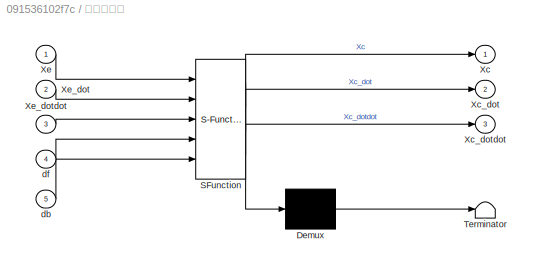
BLOCK [SubSystem] 导纳控制器
  Commented = on
  ErrorFcn = Stateflow.Translate.translate
  PermitHierarchicalResolution = ExplicitOnly
  Ports = [5, 3]
  RequestExecContextInheritance = off
  SFBlockType = MATLAB Function
  TreatAsAtomicUnit = on
BLOCK [Demux] 导纳控制器/ Demux 
  Outputs = 1
  Ports = [1, 1]
BLOCK [S-Function] 导纳控制器/ SFunction 
  EnableBusSupport = on
  FunctionName = sf_sfun
  PortCounts = [5 4]
  Ports = [5, 4]
  SFcnIsStateOwnerBlock = off
  SFunctionDeploymentMode = off
  Tag = Stateflow S-Function 12
BLOCK [Terminator] 导纳控制器/ Terminator 
BLOCK [Outport] 导纳控制器/Xc
BLOCK [Outport] 导纳控制器/Xc_dot
  Port = 2
BLOCK [Outport] 导纳控制器/Xc_dotdot
  Port = 3
BLOCK [Inport] 导纳控制器/Xe
BLOCK [Inport] 导纳控制器/Xe_dot
  Port = 2
BLOCK [Inport] 导纳控制器/Xe_dotdot
  Port = 3
BLOCK [Inport] 导纳控制器/db
  Port = 5
BLOCK [Inport] 导纳控制器/df
  Port = 4
BLOCK [SubSystem] 导纳控制器1
  Commented = on
  ErrorFcn = Stateflow.Translate.translate
  PermitHierarchicalResolution = ExplicitOnly
  Ports = [4, 3]
  RequestExecContextInheritance = off
  SFBlockType = MATLAB Function
  TreatAsAtomicUnit = on
BLOCK [Demux] 导纳控制器1/ Demux 
  Outputs = 1
  Ports = [1, 1]
BLOCK [S-Function] 导纳控制器1/ SFunction 
  EnableBusSupport = on
  FunctionName = sf_sfun
  PortCounts = [4 4]
  Ports = [4, 4]
  SFcnIsStateOwnerBlock = off
  SFunctionDeploymentMode = off
  Tag = Stateflow S-Function 9
BLOCK [Terminator] 导纳控制器1/ Terminator 
BLOCK [Outport] 导纳控制器1/Xc
BLOCK [Outport] 导纳控制器1/Xc_dot
  Port = 2
BLOCK [Outport] 导纳控制器1/Xc_dotdot
  Port = 3
BLOCK [Inport] 导纳控制器1/Xe
BLOCK [Inport] 导纳控制器1/Xe_dot
  Port = 2
BLOCK [Inport] 导纳控制器1/Xe_dotdot
  Port = 3
BLOCK [Inport] 导纳控制器1/df
  Port = 4
BLOCK [SubSystem] 导纳控制器2
  Commented = on
  ErrorFcn = Stateflow.Translate.translate
  PermitHierarchicalResolution = ExplicitOnly
  Ports = [4, 3]
  RequestExecContextInheritance = off
  SFBlockType = MATLAB Function
  TreatAsAtomicUnit = on
BLOCK [Demux] 导纳控制器2/ Demux 
  Outputs = 1
  Ports = [1, 1]
BLOCK [S-Function] 导纳控制器2/ SFunction 
  EnableBusSupport = on
  FunctionName = sf_sfun
  PortCounts = [4 4]
  Ports = [4, 4]
  SFcnIsStateOwnerBlock = off
  SFunctionDeploymentMode = off
  Tag = Stateflow S-Function 10
BLOCK [Terminator] 导纳控制器2/ Terminator 
BLOCK [Outport] 导纳控制器2/Xc
BLOCK [Outport] 导纳控制器2/Xc_dot
  Port = 2
BLOCK [Outport] 导纳控制器2/Xc_dotdot
  Port = 3
BLOCK [Inport] 导纳控制器2/Xe
BLOCK [Inport] 导纳控制器2/Xe_dot
  Port = 2
BLOCK [Inport] 导纳控制器2/Xe_dotdot
  Port = 3
BLOCK [Inport] 导纳控制器2/df
  Port = 4
BLOCK [SubSystem] 导纳控制器3
  Commented = on
  ErrorFcn = Stateflow.Translate.translate
  PermitHierarchicalResolution = ExplicitOnly
  Ports = [4, 3]
  RequestExecContextInheritance = off
  SFBlockType = MATLAB Function
  TreatAsAtomicUnit = on
BLOCK [Demux] 导纳控制器3/ Demux 
  Outputs = 1
  Ports = [1, 1]
BLOCK [S-Function] 导纳控制器3/ SFunction 
  EnableBusSupport = on
  FunctionName = sf_sfun
  PortCounts = [4 4]
  Ports = [4, 4]
  SFcnIsStateOwnerBlock = off
  SFunctionDeploymentMode = off
  Tag = Stateflow S-Function 11
BLOCK [Terminator] 导纳控制器3/ Terminator 
BLOCK [Outport] 导纳控制器3/Xc
BLOCK [Outport] 导纳控制器3/Xc_dot
  Port = 2
BLOCK [Outport] 导纳控制器3/Xc_dotdot
  Port = 3
BLOCK [Inport] 导纳控制器3/Xe
BLOCK [Inport] 导纳控制器3/Xe_dot
  Port = 2
BLOCK [Inport] 导纳控制器3/Xe_dotdot
  Port = 3
BLOCK [Inport] 导纳控制器3/df
  Port = 4
BLOCK [SubSystem] 导纳控制器4
  Commented = on
  ErrorFcn = Stateflow.Translate.translate
  PermitHierarchicalResolution = ExplicitOnly
  Ports = [5, 3]
  RequestExecContextInheritance = off
  SFBlockType = MATLAB Function
  TreatAsAtomicUnit = on
BLOCK [Demux] 导纳控制器4/ Demux 
  Outputs = 1
  Ports = [1, 1]
BLOCK [S-Function] 导纳控制器4/ SFunction 
  EnableBusSupport = on
  FunctionName = sf_sfun
  PortCounts = [5 4]
  Ports = [5, 4]
  SFcnIsStateOwnerBlock = off
  SFunctionDeploymentMode = off
  Tag = Stateflow S-Function 13
BLOCK [Terminator] 导纳控制器4/ Terminator 
BLOCK [Outport] 导纳控制器4/Xc
BLOCK [Outport] 导纳控制器4/Xc_dot
  Port = 2
BLOCK [Outport] 导纳控制器4/Xc_dotdot
  Port = 3
BLOCK [Inport] 导纳控制器4/Xe
BLOCK [Inport] 导纳控制器4/Xe_dot
  Port = 2
BLOCK [Inport] 导纳控制器4/Xe_dotdot
  Port = 3
BLOCK [Inport] 导纳控制器4/df
  Port = 4
BLOCK [Inport] 导纳控制器4/dn
  Port = 5
BLOCK [SubSystem] 导纳控制器5
  Commented = on
  ErrorFcn = Stateflow.Translate.translate
  PermitHierarchicalResolution = ExplicitOnly
  Ports = [4, 3]
  RequestExecContextInheritance = off
  SFBlockType = MATLAB Function
  TreatAsAtomicUnit = on
BLOCK [Demux] 导纳控制器5/ Demux 
  Outputs = 1
  Ports = [1, 1]
BLOCK [S-Function] 导纳控制器5/ SFunction 
  EnableBusSupport = on
  FunctionName = sf_sfun
  PortCounts = [4 4]
  Ports = [4, 4]
  SFcnIsStateOwnerBlock = off
  SFunctionDeploymentMode = off
  Tag = Stateflow S-Function 8
BLOCK [Terminator] 导纳控制器5/ Terminator 
BLOCK [Outport] 导纳控制器5/Xc
BLOCK [Outport] 导纳控制器5/Xc_dot
  Port = 2
BLOCK [Outport] 导纳控制器5/Xc_dotdot
  Port = 3
BLOCK [Inport] 导纳控制器5/Xe
BLOCK [Inport] 导纳控制器5/Xe_dot
  Port = 2
BLOCK [Inport] 导纳控制器5/Xe_dotdot
  Port = 3
BLOCK [Inport] 导纳控制器5/df
  Port = 4
BLOCK [Reference] 期望位置  REF=simulink/Sources/Ramp
  Commented = on
  Ports = [0, 1]
  SourceBlock = simulink/Sources/Ramp
  SourceProductBaseCode = SL
  SourceType = Ramp
BLOCK [Reference] 期望位置1  REF=simulink/Sources/Ramp
  Commented = on
  Ports = [0, 1]
  SourceBlock = simulink/Sources/Ramp
  SourceProductBaseCode = SL
  SourceType = Ramp
BLOCK [Reference] 期望位置2  REF=simulink/Sources/Ramp
  Commented = on
  Ports = [0, 1]
  SourceBlock = simulink/Sources/Ramp
  SourceProductBaseCode = SL
  SourceType = Ramp
BLOCK [Constant] 期望接触力
  Commented = on
  Value = 50
BLOCK [Constant] 期望接触力1
  Commented = on
  Value = 50
BLOCK [Constant] 期望接触力2
  Commented = on
  Value = 50
BLOCK [Delay] 机器人
  Commented = on
  DelayLength = 1
  InitialCondition = -0.002
  InputPortMap = u0
  Ports = [1, 1]
BLOCK [Delay] 机器人1
  Commented = on
  DelayLength = 1
  InitialCondition = -0.002
  InputPortMap = u0
  Ports = [1, 1]
BLOCK [Delay] 机器人2
  Commented = on
  DelayLength = 1
  InitialCondition = -0.002
  InputPortMap = u0
  Ports = [1, 1]
BLOCK [Reference] 模糊控制器  REF=fuzblock/Fuzzy Logic   (lib defined in mdl_858b3b3e7478)
Controller
  Commented = on
  Ports = [1, 1]
  SourceBlock = fuzblock/Fuzzy Logic \nController
  SourceProductBaseCode = FL
  SourceType = Fuzzy Inference System
BLOCK [Reference] 模糊控制器1  REF=fuzblock/Fuzzy Logic   (lib defined in mdl_858b3b3e7478)
Controller
  Commented = on
  Ports = [1, 1]
  SourceBlock = fuzblock/Fuzzy Logic \nController
  SourceProductBaseCode = FL
  SourceType = Fuzzy Inference System
BLOCK [S-Function] 环境刚度1
  Commented = on
  EnableBusSupport = off
  FunctionName = contact_force
  Ports = [1, 1]
  SFcnIsStateOwnerBlock = off
  SFunctionDeploymentMode = off
BLOCK [S-Function] 环境刚度2
  Commented = on
  EnableBusSupport = off
  FunctionName = contact_force
  Ports = [1, 1]
  SFcnIsStateOwnerBlock = off
  SFunctionDeploymentMode = off
BLOCK [S-Function] 环境刚度3
  Commented = on
  EnableBusSupport = off
  FunctionName = contact_force
  Ports = [1, 1]
  SFcnIsStateOwnerBlock = off
  SFunctionDeploymentMode = off
LINE 1//M:1 -> Sum1:2
NET AAC1:1 -> Delay1:1, Scope5:2, To Workspace11:1
NET AAC:1 -> Delay6:1, Scope18:2
NET ACC2:1 -> Delay3:1, Scope9:2, To Workspace14:1
LINE B:1 -> Sum3:1
LINE Band-Limited White Noise:1 -> Scope20:2
NET CAC1:1 -> Delay:1, Scope1:2, To Workspace10:1
NET CAC2:1 -> Delay2:1, Scope7:2, To Workspace13:1
NET CAC:1 -> Delay5:1, Scope15:2, To Workspace:1
LINE Clock:1 -> To Workspace2:1
NET Constant10:1 -> Scope4:1, Sum4:1
NET Constant11:1 -> AAC:2, AAC:3
NET Constant12:1 -> Scope6:1, Sum5:1
LINE Constant13:1 -> 导纳控制器4:2
LINE Constant14:1 -> 导纳控制器4:3
LINE Constant1:1 -> MATLAB Function4:2
LINE Constant2:1 -> Integrator1:2
LINE Constant3:1 -> CAC1:3
LINE Constant4:1 -> AAC1:2
LINE Constant5:1 -> AAC1:3
LINE Constant6:1 -> MATLAB Function4:3
NET Constant8:1 -> CAC:2, CAC:3
NET Constant9:1 -> CAC:1, Mux7:1, Scope15:1, To Workspace1:1
LINE Delay10:1 -> Mux12:2
LINE Delay1:1 -> Mux2:2
LINE Delay2:1 -> Mux3:2
LINE Delay3:1 -> Mux4:2
LINE Delay4:1 -> Mux5:2
LINE Delay5:1 -> Mux7:2
LINE Delay6:1 -> Mux8:2
LINE Delay8:1 -> Mux10:2
LINE Delay9:1 -> Mux11:2
LINE Delay:1 -> Mux1:2
LINE Demux:1 -> Saturation2:1
LINE Demux:2 -> MATLAB Function4:6
NET Derivative10:1 -> Derivative11:1, 导纳控制器2:2
LINE Derivative11:1 -> 导纳控制器2:3
NET Derivative12:1 -> Derivative13:1, 导纳控制器3:2
LINE Derivative13:1 -> 导纳控制器3:3
LINE Derivative14:1 -> Gain5:1
NET Derivative15:1 -> Derivative16:1, 导纳控制器:2
LINE Derivative16:1 -> 导纳控制器:3
LINE Derivative17:1 -> CAC2:3
LINE Derivative18:1 -> ACC2:3
LINE Derivative19:1 -> Gain7:1
LINE Derivative1:1 -> Sum1:1
LINE Derivative2:1 -> CAC1:2
LINE Derivative3:1 -> Gain2:1
LINE Derivative4:1 -> CAC2:2
LINE Derivative5:1 -> ACC2:2
NET Derivative6:1 -> Derivative7:1, 导纳控制器5:2
LINE Derivative7:1 -> 导纳控制器5:3
NET Derivative8:1 -> Derivative9:1, 导纳控制器1:2
LINE Derivative9:1 -> 导纳控制器1:3
NET Derivative:1 -> Derivative1:1, Sum2:1
LINE Fd10:1 -> Sum14:1
NET Fd4:1 -> Scope13:1, Sum8:1
NET Fd5:1 -> Scope17:1, Sum9:1
NET Fd6:1 -> Scope19:1, Sum10:1
LINE Fd8:1 -> Sum12:1
LINE Fd9:1 -> Sum13:1
LINE Fuzzy Logic Controller:1 -> Demux:1
LINE Gain1:1 -> Saturation:1
LINE Gain2:1 -> Saturation1:1
LINE Gain3:1 -> MATLAB Function4:5
LINE Gain4:1 -> Saturation3:1
LINE Gain5:1 -> Saturation4:1
LINE Gain6:1 -> Saturation5:1
LINE Gain7:1 -> Saturation6:1
NET Integrator1:1 -> Mux:2, Scope2:1
NET Integrator:1 -> Integrator1:1, Sum2:2
NET MATLAB Function4:1 -> Delay4:1, Scope12:2
LINE Mux10:1 -> 环境刚度1:1
LINE Mux11:1 -> 环境刚度2:1
LINE Mux12:1 -> 环境刚度3:1
LINE Mux13:1 -> 实际接触力:1
LINE Mux14:1 -> 模糊控制器:1
LINE Mux15:1 -> 实际接触力2:1
LINE Mux16:1 -> 模糊控制器1:1
LINE Mux1:1 -> S-Function1:1
LINE Mux2:1 -> S-Function2:1
LINE Mux3:1 -> S-Function3:1
LINE Mux4:1 -> S-Function4:1
LINE Mux5:1 -> S-Function5:1
LINE Mux6:1 -> Fuzzy Logic Controller:1
LINE Mux7:1 -> S-Function6:1
LINE Mux8:1 -> S-Function7:1
LINE Mux9:1 -> 实际接触力1:1
LINE Mux:1 -> S-Function:1
NET Ramp1:1 -> AAC1:1, Mux2:1, Scope5:1
NET Ramp2:1 -> MATLAB Function4:1, Mux5:1, Scope12:1
NET Ramp4:1 -> Derivative8:1, Mux10:1, Scope23:1, 导纳控制器1:1
NET Ramp5:1 -> Derivative10:1, Mux11:1, Scope25:1, 导纳控制器2:1
NET Ramp6:1 -> Derivative12:1, Mux12:1, Scope27:1, 导纳控制器3:1
NET Ramp:1 -> CAC1:1, Derivative2:1, Mux1:1, Scope1:1, To Workspace9:1
NET S-Function1:1 -> Scope4:2, Sum4:2, To Workspace4:1
NET S-Function2:1 -> Scope6:2, Sum5:2, To Workspace8:1
NET S-Function3:1 -> Scope8:2, Sum6:2, To Workspace15:1
NET S-Function4:1 -> Scope10:2, Sum7:2, To Workspace16:1
NET S-Function5:1 -> Scope13:2, Sum8:2
NET S-Function6:1 -> Scope17:2, Sum9:2
NET S-Function7:1 -> Scope19:2, Sum10:2
NET S-Function:1 -> Scope3:1, Sum:1
LINE Saturation1:1 -> Mux6:2
NET Saturation2:1 -> Gain3:1, Scope14:1
LINE Saturation3:1 -> Mux14:1
LINE Saturation4:1 -> Mux14:2
LINE Saturation5:1 -> Mux16:1
LINE Saturation6:1 -> Mux16:2
LINE Saturation:1 -> Mux6:1
NET Sine Wave1:1 -> CAC2:1, Derivative17:1, Derivative4:1, Mux3:1, Scope7:1, To Workspace12:1
NET Sine Wave2:1 -> ACC2:1, Derivative18:1, Derivative5:1, Mux4:1, Scope9:1
NET Sine Wave3:1 -> Scope8:1, Sum6:1
LINE Sine Wave5:1 -> Sum16:1
LINE Sine Wave6:1 -> Sum16:2
NET Sine Wave7:1 -> Scope10:1, Sum7:1
LINE Sine Wave8:1 -> To Workspace3:1
NET Step2:1 -> AAC:1, Mux8:1, Scope18:1
LINE Subsystem/Constant1:1 -> Subsystem/Fd:1
LINE Subsystem/Derivative:1 -> Subsystem/Scope:1
NET Subsystem/Ramp1:1 -> Subsystem/Xe:1, Subsystem/Xr:1
LINE Subsystem/Sine Wave:1 -> Subsystem/Derivative:1
NET Subsystem:1 -> Derivative:1, Mux:1, Scope2:2
NET Subsystem:3 -> Scope3:2, Sum:2
LINE Sum10:1 -> AAC:4
LINE Sum11:1 -> 导纳控制器5:4
LINE Sum12:1 -> 导纳控制器1:4
LINE Sum13:1 -> 导纳控制器2:4
LINE Sum14:1 -> 导纳控制器3:4
NET Sum15:1 -> Derivative14:1, Gain4:1, 导纳控制器:4
LINE Sum16:1 -> Scope11:1
NET Sum17:1 -> Derivative19:1, Gain6:1, 导纳控制器4:4
LINE Sum1:1 -> Integrator:1
LINE Sum2:1 -> B:1
LINE Sum3:1 -> 1//M:1
LINE Sum4:1 -> CAC1:4
LINE Sum5:1 -> AAC1:4
LINE Sum6:1 -> CAC2:4
LINE Sum7:1 -> ACC2:4
NET Sum8:1 -> Derivative3:1, Gain1:1, MATLAB Function4:4
LINE Sum9:1 -> CAC:4
LINE Sum:1 -> Sum3:2
LINE Waveform Generator:1 -> Scope20:1
NET 实际接触力1:1 -> Scope16:2, Sum11:2
NET 实际接触力2:1 -> Scope29:2, Sum17:2
NET 实际接触力:1 -> Scope24:2, Sum15:2
NET 导纳控制器1:1 -> Delay8:1, Scope23:2
NET 导纳控制器2:1 -> Delay9:1, Scope25:2
NET 导纳控制器3:1 -> Delay10:1, Scope27:2
NET 导纳控制器4:1 -> Scope26:2, 机器人2:1
NET 导纳控制器5:1 -> Scope21:2, 机器人1:1
NET 导纳控制器:1 -> Scope22:2, 机器人:1
NET 期望位置1:1 -> Derivative6:1, Mux9:1, Scope21:1, 导纳控制器5:1
NET 期望位置2:1 -> Mux15:1, Scope26:1, 导纳控制器4:1
NET 期望位置:1 -> Derivative15:1, Mux13:1, Scope22:1, 导纳控制器:1
NET 期望接触力1:1 -> Scope16:1, Sum11:1
NET 期望接触力2:1 -> Scope29:1, Sum17:1
NET 期望接触力:1 -> Scope24:1, Sum15:1
LINE 机器人1:1 -> Mux9:2
LINE 机器人2:1 -> Mux15:2
LINE 机器人:1 -> Mux13:2
LINE 模糊控制器1:1 -> 导纳控制器4:5
LINE 模糊控制器:1 -> 导纳控制器:5
NET 环境刚度1:1 -> Sum12:2, To Workspace5:1
NET 环境刚度2:1 -> Sum13:2, To Workspace6:1
NET 环境刚度3:1 -> Sum14:2, To Workspace7:1
note: NET lines group one-source signal fan-out (src -> all destinations, sorted); 1:1 wires keep LINE
CHART 导纳控制器5 states=1 transitions=1
  STATE_LABEL 'eML_blk_kernel()'
  STATE_LABEL 'SCRIPT:\nfunction [Xc,Xc_dot,Xc_dotdot]  = fcnlmp(Xe,Xe_dot,Xe_dotdot,df)  \n\tm =1;b = 50;k=10;T = 0.00005; % 参数初始化  \n\tpersistent Xc_pre Xc_dot_pre;% 持久变量 https://ww2.mathworks.cn/help/matlab/ref/persistent.html  \n\tif isempty(Xc_pre)   \n\t   Xc_pre = -0.002;  \n\tend  \n\tif isempty(Xc_dot_pre)   \n\t   Xc_dot_pre = 0;  \n\tend  \n\tXc_dotdot_pre = Xe_dotdot + 1/m*(df + b*(Xe_dot - Xc_dot_pre) + k*(Xe - Xc_pre...<+380ch>'
CHART 导纳控制器1 states=1 transitions=1
  STATE_LABEL 'eML_blk_kernel()'
  STATE_LABEL 'SCRIPT:\nfunction [Xc,Xc_dot,Xc_dotdot]  = fcnlmp(Xe,Xe_dot,Xe_dotdot,df)  \n\tm =1;b = 50;k=10;T = 0.00005; % 参数初始化  \n\tpersistent Xc_pre Xc_dot_pre;% 持久变量 https://ww2.mathworks.cn/help/matlab/ref/persistent.html  \n\tif isempty(Xc_pre)   \n\t   Xc_pre = -0.002;  \n\tend  \n\tif isempty(Xc_dot_pre)   \n\t   Xc_dot_pre = 0;  \n\tend  \n\tXc_dotdot_pre = Xe_dotdot + 1/m*(df + b*(Xe_dot - Xc_dot_pre) + k*(Xe - Xc_pre...<+380ch>'
CHART 导纳控制器2 states=1 transitions=1
  STATE_LABEL 'eML_blk_kernel()'
  STATE_LABEL 'SCRIPT:\nfunction [Xc,Xc_dot,Xc_dotdot]  = fcnlmp(Xe,Xe_dot,Xe_dotdot,df)  \n\tm =1;b = 130;k=10;T = 0.00005; % 参数初始化  \n\tpersistent Xc_pre Xc_dot_pre;% 持久变量 https://ww2.mathworks.cn/help/matlab/ref/persistent.html  \n\tif isempty(Xc_pre)   \n\t   Xc_pre = -0.002;  \n\tend  \n\tif isempty(Xc_dot_pre)   \n\t   Xc_dot_pre = 0;  \n\tend  \n\tXc_dotdot_pre = Xe_dotdot + 1/m*(df + b*(Xe_dot - Xc_dot_pre) + k*(Xe - Xc_pr...<+381ch>'
CHART 导纳控制器3 states=1 transitions=1
  STATE_LABEL 'eML_blk_kernel()'
  STATE_LABEL 'SCRIPT:\nfunction [Xc,Xc_dot,Xc_dotdot]  = fcnlmp(Xe,Xe_dot,Xe_dotdot,df)  \n\tm =1;b = 60;k=500;T = 0.00005; % 参数初始化  \n\tpersistent Xc_pre Xc_dot_pre;% 持久变量 https://ww2.mathworks.cn/help/matlab/ref/persistent.html  \n\tif isempty(Xc_pre)   \n\t   Xc_pre = -0.002;  \n\tend  \n\tif isempty(Xc_dot_pre)   \n\t   Xc_dot_pre = 0;  \n\tend  \n\tXc_dotdot_pre = Xe_dotdot + 1/m*(df + b*(Xe_dot - Xc_dot_pre) + k*(Xe - Xc_pr...<+381ch>'
CHART 导纳控制器 states=1 transitions=1
  STATE_LABEL 'eML_blk_kernel()'
  STATE_LABEL 'SCRIPT:\nfunction [Xc,Xc_dot,Xc_dotdot]  = fcnlmp(Xe,Xe_dot,Xe_dotdot,df,db)  \n\tm =1;b = 60;k=0;T = 0.00005;a=0.01; % 参数初始化  \n\tpersistent Xc_pre Xc_dot_pre ;% 持久变量 https://ww2.mathworks.cn/help/matlab/ref/persistent.html  \n\tif isempty(Xc_pre)   \n\t   Xc_pre = -0.002;  \n\tend  \n\tif isempty(Xc_dot_pre)   \n\t   Xc_dot_pre = 0;  \n    end  \n% \tE=-(Xe_dot - Xc_dot_pre);\n    Xc_dotdot_pre = Xe_dotdot + 1/m*(...<+491ch>'
CHART 导纳控制器4 states=1 transitions=1
  STATE_LABEL 'eML_blk_kernel()'
  STATE_LABEL 'SCRIPT:\nfunction [Xc,Xc_dot,Xc_dotdot]  = fcnlmp(Xe,Xe_dot,Xe_dotdot,df,dn)  \n\tm =1;b = 65;k=0;T = 0.0005;a=0.01; % 参数初始化  \n\tpersistent Xc_pre Xc_dot_pre df_pre fi_pre;% 持久变量 https://ww2.mathworks.cn/help/matlab/ref/persistent.html  \n\tif isempty(Xc_pre)   \n\t   Xc_pre = -0.002;  \n\tend  \n\tif isempty(Xc_dot_pre)   \n\t   Xc_dot_pre = 0.1;  \n    end  \n    if isempty(df_pre)   \n\t   df_pre = 51;  \n    end...<+728ch>'
CHART AAC1 states=1 transitions=1
  STATE_LABEL 'eML_blk_kernel()'
  STATE_LABEL 'SCRIPT:\nfunction [Xc,Xc_dot,Xc_dotdot]  = fcnlmp(Xe,Xe_dot,Xe_dotdot,df)  \n\tm =1;b = 60;k=0;T = 0.0005;a=0.01; % 参数初始化  \n\tpersistent Xc_pre Xc_dot_pre df_pre fi_pre;% 持久变量 https://ww2.mathworks.cn/help/matlab/ref/persistent.html  \n\tif isempty(Xc_pre)   \n\t   Xc_pre = -0.002;  \n\tend  \n\tif isempty(Xc_dot_pre)   \n\t   Xc_dot_pre = 0.1;  \n    end  \n    if isempty(df_pre)   \n\t   df_pre = 51;  \n    end  \n...<+678ch>'
CHART CAC1 states=1 transitions=1
  STATE_LABEL 'eML_blk_kernel()'
  STATE_LABEL 'SCRIPT:\nfunction [Xc,Xc_dot,Xc_dotdot]  = fcnlmp(Xe,Xe_dot,Xe_dotdot,df)  \n\tm =1;b = 60;k=0;T = 0.00005; % 参数初始化  \n\tpersistent Xc_pre Xc_dot_pre;% 持久变量 https://ww2.mathworks.cn/help/matlab/ref/persistent.html  \n\tif isempty(Xc_pre)   \n\t   Xc_pre = -0.002;  \n\tend  \n\tif isempty(Xc_dot_pre)   \n\t   Xc_dot_pre = 0;  \n\tend  \n\tXc_dotdot_pre = Xe_dotdot + 1/m*(df + b*(Xe_dot - Xc_dot_pre) + k*(Xe - Xc_pre)...<+379ch>'
CHART CAC2 states=1 transitions=1
  STATE_LABEL 'eML_blk_kernel()'
  STATE_LABEL 'SCRIPT:\nfunction [Xc,Xc_dot,Xc_dotdot]  = fcnlmp(Xe,Xe_dot,Xe_dotdot,df)  \n\tm =1;b = 60;k=0;T = 0.00005; % 参数初始化  \n\tpersistent Xc_pre Xc_dot_pre;% 持久变量 https://ww2.mathworks.cn/help/matlab/ref/persistent.html  \n\tif isempty(Xc_pre)   \n\t   Xc_pre = 0.098;  \n\tend  \n\tif isempty(Xc_dot_pre)   \n\t   Xc_dot_pre = 0;  \n\tend  \n\tXc_dotdot_pre = Xe_dotdot + 1/m*(df + b*(Xe_dot - Xc_dot_pre) + k*(Xe - Xc_pre))...<+378ch>'
CHART ACC2 states=1 transitions=1
  STATE_LABEL 'eML_blk_kernel()'
  STATE_LABEL 'SCRIPT:\nfunction [Xc,Xc_dot,Xc_dotdot]  = fcnlmp(Xe,Xe_dot,Xe_dotdot,df)  \n\tm =1;b = 60;k=0;T = 0.0005;a=0.01; % 参数初始化  \n\tpersistent Xc_pre Xc_dot_pre df_pre fi_pre;% 持久变量 https://ww2.mathworks.cn/help/matlab/ref/persistent.html  \n\tif isempty(Xc_pre)   \n\t   Xc_pre = 0.098;  \n\tend  \n\tif isempty(Xc_dot_pre)   \n\t   Xc_dot_pre = 0.1;  \n    end  \n    if isempty(df_pre)   \n\t   df_pre = 51;  \n    end  \n ...<+1001ch>'
CHART MATLAB Function4 states=1 transitions=1
  STATE_LABEL 'eML_blk_kernel()'
  STATE_LABEL 'SCRIPT:\nfunction [Xc,Xc_dot,Xc_dotdot]  = fcnlmp(Xe,Xe_dot,Xe_dotdot,df,dn,db1)  \n\tm =1;b = 65;k=0;T = 0.005;a=0.01; % 参数初始化  \n\tpersistent Xc_pre Xc_dot_pre df_pre fi_pre;% 持久变量 https://ww2.mathworks.cn/help/matlab/ref/persistent.html  \n\tif isempty(Xc_pre)   \n\t   Xc_pre = -0.002;  \n\tend  \n\tif isempty(Xc_dot_pre)   \n\t   Xc_dot_pre = 0.1;  \n    end  \n    if isempty(df_pre)   \n\t   df_pre = 51;  \n    ...<+727ch>'
CHART CAC states=1 transitions=1
  STATE_LABEL 'eML_blk_kernel()'
  STATE_LABEL 'SCRIPT:\nfunction [Xc,Xc_dot,Xc_dotdot]  = fcnlmp(Xe,Xe_dot,Xe_dotdot,df)  \n\tm =1;b = 100;k=0;T = 0.00005; % 参数初始化  \n\tpersistent Xc_pre Xc_dot_pre;% 持久变量 https://ww2.mathworks.cn/help/matlab/ref/persistent.html  \n\tif isempty(Xc_pre)   \n\t   Xc_pre = 0.098;  \n\tend  \n\tif isempty(Xc_dot_pre)   \n\t   Xc_dot_pre = 0;  \n\tend  \n\tXc_dotdot_pre = Xe_dotdot + 1/m*(df + b*(Xe_dot - Xc_dot_pre) + k*(Xe - Xc_pre)...<+379ch>'
CHART AAC states=1 transitions=1
  STATE_LABEL 'eML_blk_kernel()'
  STATE_LABEL 'SCRIPT:\nfunction [Xc,Xc_dot,Xc_dotdot]  = fcnlmp(Xe,Xe_dot,Xe_dotdot,df)  \n\tm =1;b = 65;k=1000;T = 0.005;a=0.01; % 参数初始化  \n\tpersistent Xc_pre Xc_dot_pre df_pre fi_pre;% 持久变量 https://ww2.mathworks.cn/help/matlab/ref/persistent.html  \n\tif isempty(Xc_pre)   \n\t   Xc_pre = 0.098;  \n\tend  \n\tif isempty(Xc_dot_pre)   \n\t   Xc_dot_pre = 0.1;  \n    end  \n    if isempty(df_pre)   \n\t   df_pre = 51;  \n    end  ...<+679ch>'
CHART  states=0 transitions=0
CHART  states=0 transitions=0
CHART  states=0 transitions=0
CHART  states=0 transitions=0
CHART  states=0 transitions=0
CHART  states=0 transitions=0
CHART  states=0 transitions=0
CHART  states=0 transitions=0
CHART  states=0 transitions=0
CHART  states=0 transitions=0
CHART  states=0 transitions=0
CHART  states=0 transitions=0
CHART  states=0 transitions=0
